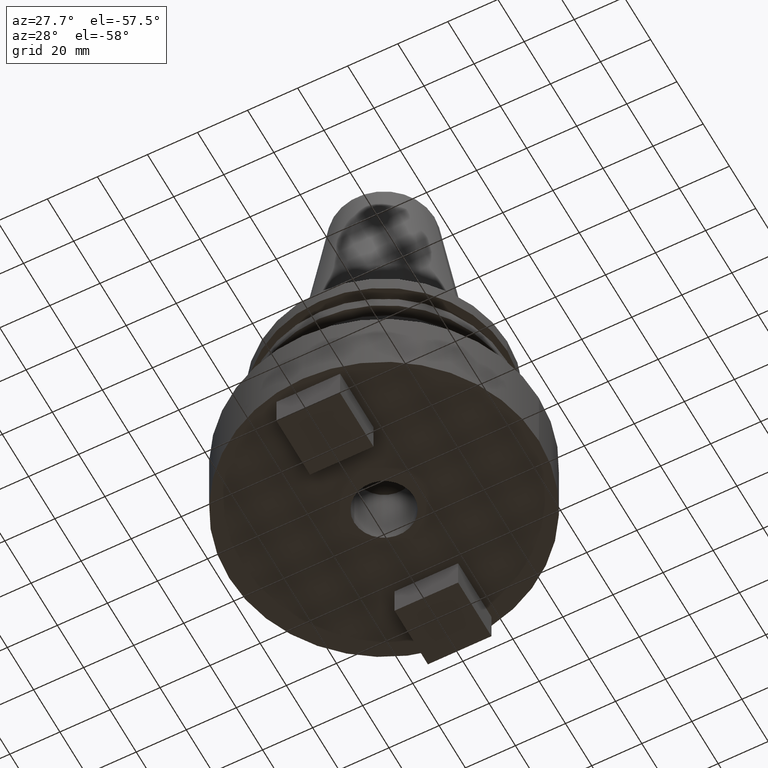
[diagram: clean part render]
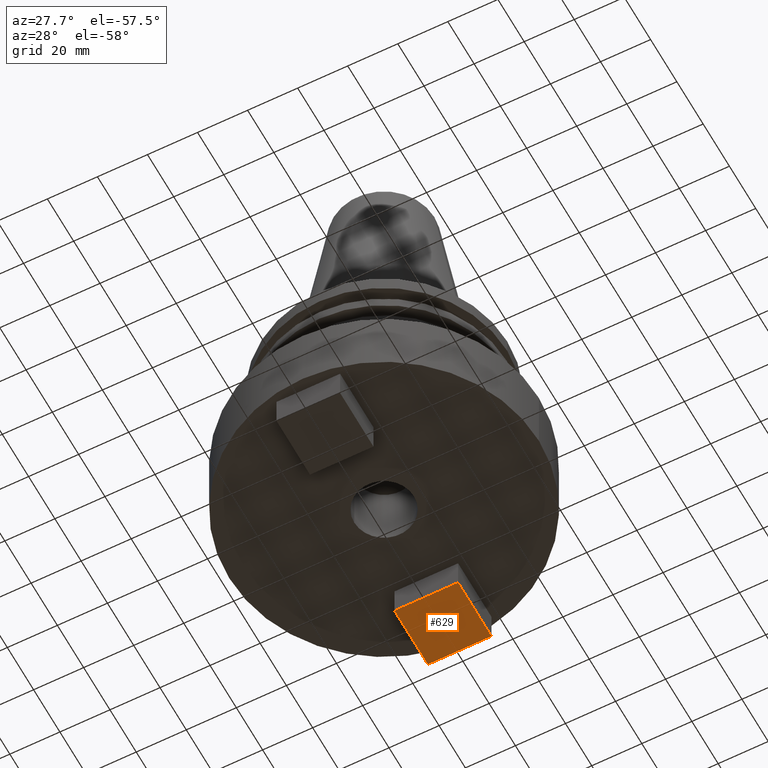
[diagram: same view with one face highlighted and labeled with its STEP entity id]
A machine part, auxiliary view. The second image highlights one B-rep face of the part: STEP entity #629.
In plain terms, the highlighted planar face has unit normal (-0, 0, -1).
Its self-contained STEP definition (entity closure, byte-faithful):
#5 = EDGE_CURVE ( 'NONE', #1038, #627, #994, .T. ) ;
#43 = DIRECTION ( 'NONE',  ( -1.000000000000000000, 0.000000000000000000, 0.000000000000000000 ) ) ;
#145 = CARTESIAN_POINT ( 'NONE',  ( -12.69999999999999396, 57.59000000000000341, -88.90000000000001990 ) ) ;
#183 = ORIENTED_EDGE ( 'NONE', *, *, #958, .T. ) ;
#200 = VECTOR ( 'NONE', #43, 1000.000000000000000 ) ;
#219 = VECTOR ( 'NONE', #972, 1000.000000000000000 ) ;
#226 = ORIENTED_EDGE ( 'NONE', *, *, #403, .T. ) ;
#230 = CARTESIAN_POINT ( 'NONE',  ( 12.70000000000000462, 57.58999999999999631, -88.90000000000001990 ) ) ;
#312 = VECTOR ( 'NONE', #1085, 1000.000000000000000 ) ;
#386 = ORIENTED_EDGE ( 'NONE', *, *, #5, .T. ) ;
#389 = DIRECTION ( 'NONE',  ( -6.829619984160658046E-17, -1.000000000000000000, 0.000000000000000000 ) ) ;
#396 = EDGE_CURVE ( 'NONE', #627, #536, #574, .T. ) ;
#403 = EDGE_CURVE ( 'NONE', #536, #776, #649, .T. ) ;
#473 = LINE ( 'NONE', #800, #200 ) ;
#479 = FACE_OUTER_BOUND ( 'NONE', #1066, .T. ) ;
#496 = DIRECTION ( 'NONE',  ( -1.000000000000000000, 0.000000000000000000, 0.000000000000000000 ) ) ;
#536 = VERTEX_POINT ( 'NONE', #960 ) ;
#572 = CARTESIAN_POINT ( 'NONE',  ( 0.000000000000000000, 0.000000000000000000, -88.90000000000001990 ) ) ;
#574 = LINE ( 'NONE', #645, #219 ) ;
#617 = VECTOR ( 'NONE', #389, 1000.000000000000000 ) ;
#627 = VERTEX_POINT ( 'NONE', #145 ) ;
#629 = ADVANCED_FACE ( 'NONE', ( #479 ), #634, .T. ) ;
#634 = PLANE ( 'NONE',  #824 ) ;
#645 = CARTESIAN_POINT ( 'NONE',  ( 12.70000000000000462, 57.58999999999999631, -88.90000000000001990 ) ) ;
#649 = LINE ( 'NONE', #230, #617 ) ;
#776 = VERTEX_POINT ( 'NONE', #873 ) ;
#800 = CARTESIAN_POINT ( 'NONE',  ( 12.70000000000000284, 32.18999999999999773, -88.90000000000001990 ) ) ;
#822 = CARTESIAN_POINT ( 'NONE',  ( -12.69999999999999396, 32.18999999999999773, -88.90000000000001990 ) ) ;
#824 = AXIS2_PLACEMENT_3D ( 'NONE', #572, #1050, #496 ) ;
#858 = ORIENTED_EDGE ( 'NONE', *, *, #396, .T. ) ;
#873 = CARTESIAN_POINT ( 'NONE',  ( 12.70000000000000284, 32.18999999999999773, -88.90000000000001990 ) ) ;
#958 = EDGE_CURVE ( 'NONE', #776, #1038, #473, .T. ) ;
#960 = CARTESIAN_POINT ( 'NONE',  ( 12.70000000000000462, 57.58999999999999631, -88.90000000000001990 ) ) ;
#972 = DIRECTION ( 'NONE',  ( 1.000000000000000000, -2.731847993664263218E-16, -0.000000000000000000 ) ) ;
#994 = LINE ( 'NONE', #1002, #312 ) ;
#1002 = CARTESIAN_POINT ( 'NONE',  ( -12.69999999999999396, 57.59000000000000341, -88.90000000000001990 ) ) ;
#1038 = VERTEX_POINT ( 'NONE', #822 ) ;
#1050 = DIRECTION ( 'NONE',  ( -0.000000000000000000, 0.000000000000000000, -1.000000000000000000 ) ) ;
#1066 = EDGE_LOOP ( 'NONE', ( #386, #858, #226, #183 ) ) ;
#1085 = DIRECTION ( 'NONE',  ( -0.000000000000000000, 1.000000000000000000, -0.000000000000000000 ) ) ;